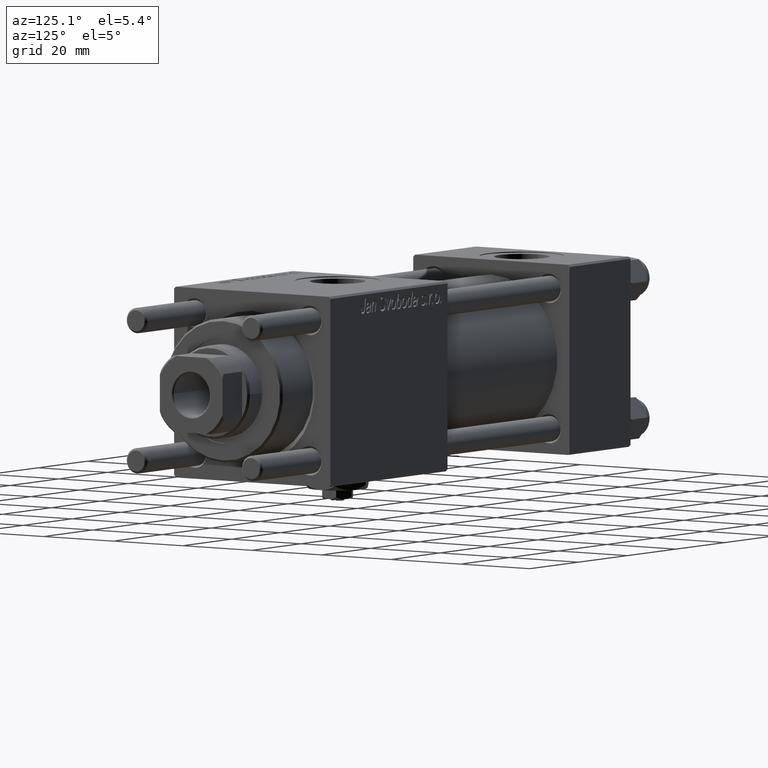
[diagram: clean part render]
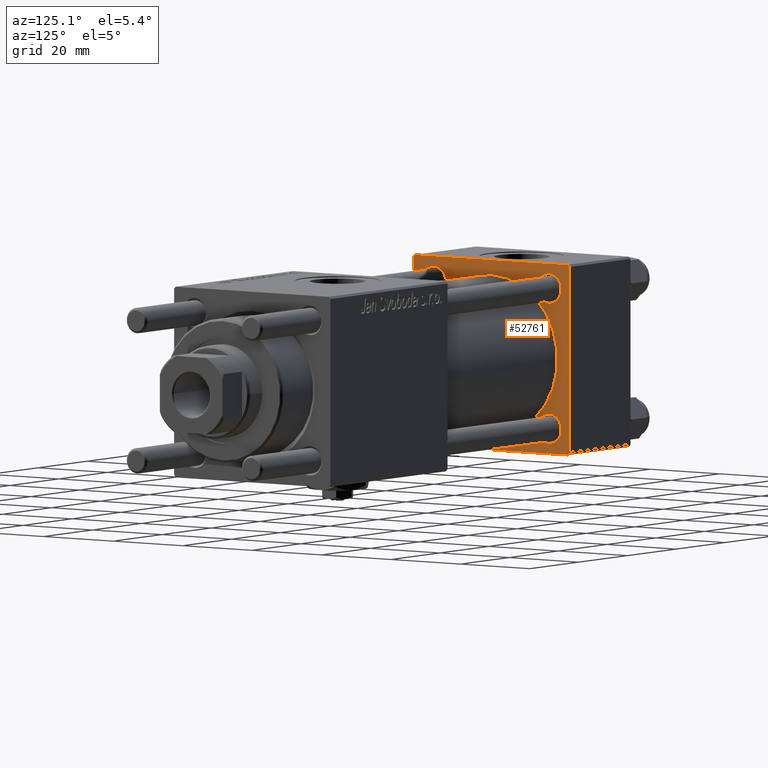
[diagram: same view with one face highlighted and labeled with its STEP entity id]
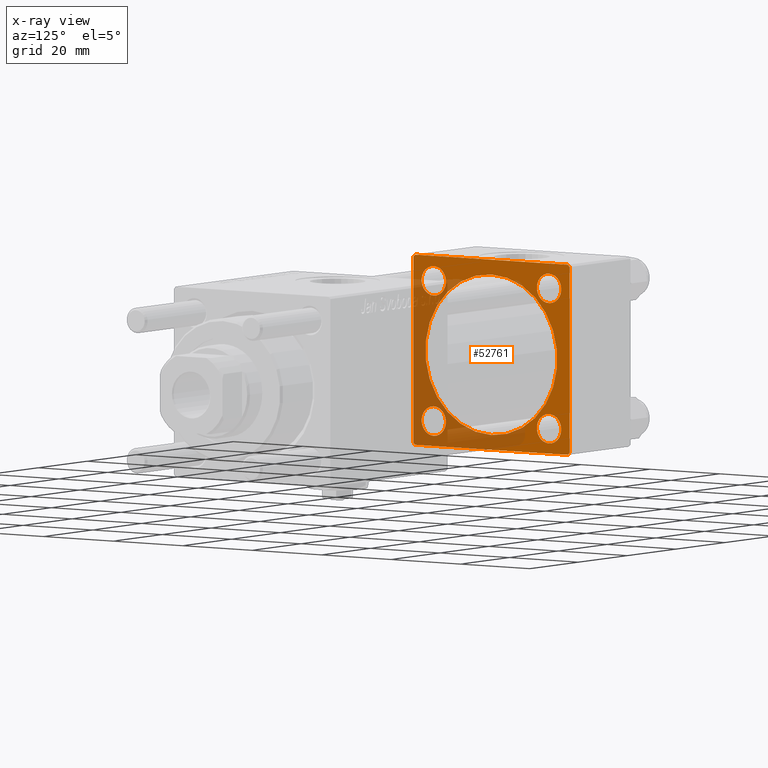
[diagram: x-ray of the same camera — body ghosted, the highlighted face saturated]
A machine part, auxiliary view. The second image highlights one B-rep face of the part: STEP entity #52761.
The next image is the same camera in x-ray: the body ghosted, the highlighted face saturated — about 42% of this face is hidden behind the body in this view.
In plain terms, the highlighted planar face has unit normal (-1, 0, 0).
Its self-contained STEP definition (entity closure, byte-faithful):
#469 = CARTESIAN_POINT ( 'NONE',  ( 25.00000000000000000, 16.59999999999999787, -16.60000000000000497 ) ) ;
#918 = EDGE_CURVE ( 'NONE', #10481, #34786, #30531, .T. ) ;
#1044 = CARTESIAN_POINT ( 'NONE',  ( 25.00000000000000000, -2.602085213965210642E-15, 19.00000000000000000 ) ) ;
#1300 = ORIENTED_EDGE ( 'NONE', *, *, #46770, .T. ) ;
#1978 = ORIENTED_EDGE ( 'NONE', *, *, #33484, .F. ) ;
#1992 = DIRECTION ( 'NONE',  ( 1.000000000000000000, -0.000000000000000000, 0.000000000000000000 ) ) ;
#2874 = EDGE_CURVE ( 'NONE', #12481, #34786, #7894, .T. ) ;
#3317 = CARTESIAN_POINT ( 'NONE',  ( 25.00000000000000000, 0.000000000000000000, 0.000000000000000000 ) ) ;
#3494 = EDGE_CURVE ( 'NONE', #8020, #51766, #27690, .T. ) ;
#3571 = CARTESIAN_POINT ( 'NONE',  ( 25.00000000000000000, 22.50000000000000000, 22.50000000000000355 ) ) ;
#4295 = DIRECTION ( 'NONE',  ( 0.000000000000000000, 0.000000000000000000, 1.000000000000000000 ) ) ;
#4323 = CARTESIAN_POINT ( 'NONE',  ( 25.00000000000000000, 22.50000000000000000, -21.99999999999998224 ) ) ;
#4461 = ORIENTED_EDGE ( 'NONE', *, *, #36915, .F. ) ;
#4468 = DIRECTION ( 'NONE',  ( -1.000000000000000000, 0.000000000000000000, -0.000000000000000000 ) ) ;
#4617 = AXIS2_PLACEMENT_3D ( 'NONE', #469, #5193, #18534 ) ;
#5193 = DIRECTION ( 'NONE',  ( -1.000000000000000000, 0.000000000000000000, -0.000000000000000000 ) ) ;
#5526 = ORIENTED_EDGE ( 'NONE', *, *, #13721, .T. ) ;
#5672 = ORIENTED_EDGE ( 'NONE', *, *, #3494, .T. ) ;
#6130 = AXIS2_PLACEMENT_3D ( 'NONE', #7556, #47831, #21185 ) ;
#6169 = DIRECTION ( 'NONE',  ( 0.000000000000000000, 0.000000000000000000, 1.000000000000000000 ) ) ;
#6306 = VERTEX_POINT ( 'NONE', #7013 ) ;
#6476 = VERTEX_POINT ( 'NONE', #1044 ) ;
#6832 = VERTEX_POINT ( 'NONE', #9544 ) ;
#7011 = DIRECTION ( 'NONE',  ( 0.000000000000000000, 0.000000000000000000, 1.000000000000000000 ) ) ;
#7013 = CARTESIAN_POINT ( 'NONE',  ( 25.00000000000000000, -2.752562955852396712E-16, -19.00000000000000000 ) ) ;
#7549 = DIRECTION ( 'NONE',  ( 0.000000000000000000, 0.000000000000000000, 1.000000000000000000 ) ) ;
#7556 = CARTESIAN_POINT ( 'NONE',  ( 25.00000000000000000, 16.59999999999999787, 16.60000000000000497 ) ) ;
#7676 = EDGE_CURVE ( 'NONE', #52121, #18859, #7812, .T. ) ;
#7812 = CIRCLE ( 'NONE', #57926, 3.499999999999989342 ) ;
#7894 = LINE ( 'NONE', #4323, #50327 ) ;
#8020 = VERTEX_POINT ( 'NONE', #27577 ) ;
#8079 = ORIENTED_EDGE ( 'NONE', *, *, #31995, .T. ) ;
#8183 = CARTESIAN_POINT ( 'NONE',  ( 25.00000000000000000, 22.50000000000000000, 22.50000000000000355 ) ) ;
#8188 = CIRCLE ( 'NONE', #13832, 19.00000000000000000 ) ;
#8337 = AXIS2_PLACEMENT_3D ( 'NONE', #12889, #30973, #4295 ) ;
#8926 = VERTEX_POINT ( 'NONE', #22769 ) ;
#9544 = CARTESIAN_POINT ( 'NONE',  ( 25.00000000000000000, 16.59999999999999787, -13.10000000000000142 ) ) ;
#10481 = VERTEX_POINT ( 'NONE', #34252 ) ;
#10488 = DIRECTION ( 'NONE',  ( 1.000000000000000000, -0.000000000000000000, 0.000000000000000000 ) ) ;
#10702 = ORIENTED_EDGE ( 'NONE', *, *, #918, .F. ) ;
#10995 = DIRECTION ( 'NONE',  ( 0.000000000000000000, 0.7071067811865426878, -0.7071067811865524577 ) ) ;
#11981 = CARTESIAN_POINT ( 'NONE',  ( 25.00000000000000000, 16.59999999999999787, 16.60000000000000497 ) ) ;
#12481 = VERTEX_POINT ( 'NONE', #36289 ) ;
#12552 = LINE ( 'NONE', #21448, #33091 ) ;
#12889 = CARTESIAN_POINT ( 'NONE',  ( 25.00000000000000000, -16.59999999999999076, 16.60000000000000853 ) ) ;
#13408 = CARTESIAN_POINT ( 'NONE',  ( 25.00000000000000000, -16.59999999999999076, -16.60000000000000853 ) ) ;
#13721 = EDGE_CURVE ( 'NONE', #18859, #52121, #44825, .T. ) ;
#13832 = AXIS2_PLACEMENT_3D ( 'NONE', #14931, #10488, #28565 ) ;
#13959 = EDGE_LOOP ( 'NONE', ( #50809, #41558, #10702, #42950, #30677, #23197, #24981, #24194 ) ) ;
#14346 = EDGE_CURVE ( 'NONE', #12481, #50145, #19778, .T. ) ;
#14754 = VERTEX_POINT ( 'NONE', #53906 ) ;
#14931 = CARTESIAN_POINT ( 'NONE',  ( 25.00000000000000000, -2.602085213965210642E-15, 0.000000000000000000 ) ) ;
#15060 = EDGE_CURVE ( 'NONE', #14754, #15718, #28828, .T. ) ;
#15086 = ORIENTED_EDGE ( 'NONE', *, *, #15060, .T. ) ;
#15112 = CARTESIAN_POINT ( 'NONE',  ( 25.00000000000000000, -22.50000000000000000, 22.00000000000000000 ) ) ;
#15718 = VERTEX_POINT ( 'NONE', #50536 ) ;
#16350 = FACE_BOUND ( 'NONE', #25541, .T. ) ;
#16366 = CARTESIAN_POINT ( 'NONE',  ( 25.00000000000000000, -22.50000000000000000, -21.99999999999997158 ) ) ;
#17494 = CARTESIAN_POINT ( 'NONE',  ( 25.00000000000000000, -16.59999999999999076, -20.09999999999999787 ) ) ;
#17738 = VERTEX_POINT ( 'NONE', #16366 ) ;
#18486 = CIRCLE ( 'NONE', #19478, 3.500000000000003109 ) ;
#18534 = DIRECTION ( 'NONE',  ( 0.000000000000000000, 0.000000000000000000, 1.000000000000000000 ) ) ;
#18577 = CARTESIAN_POINT ( 'NONE',  ( 25.00000000000000000, -21.99999999999997158, -22.50000000000000711 ) ) ;
#18859 = VERTEX_POINT ( 'NONE', #29931 ) ;
#19121 = VECTOR ( 'NONE', #57737, 1000.000000000000000 ) ;
#19478 = AXIS2_PLACEMENT_3D ( 'NONE', #11981, #38955, #7549 ) ;
#19778 = LINE ( 'NONE', #37863, #26909 ) ;
#20254 = VERTEX_POINT ( 'NONE', #15112 ) ;
#21185 = DIRECTION ( 'NONE',  ( 0.000000000000000000, 0.000000000000000000, 1.000000000000000000 ) ) ;
#21448 = CARTESIAN_POINT ( 'NONE',  ( 25.00000000000000000, -22.50000000000000000, 22.00000000000000000 ) ) ;
#21693 = EDGE_CURVE ( 'NONE', #6832, #8926, #24929, .T. ) ;
#21871 = CARTESIAN_POINT ( 'NONE',  ( 25.00000000000000000, -21.99999999999997868, 22.50000000000000000 ) ) ;
#22181 = CARTESIAN_POINT ( 'NONE',  ( 25.00000000000000000, 21.99999999999999289, 22.50000000000000355 ) ) ;
#22410 = AXIS2_PLACEMENT_3D ( 'NONE', #30105, #1992, #7011 ) ;
#22769 = CARTESIAN_POINT ( 'NONE',  ( 25.00000000000000000, 16.59999999999999787, -20.10000000000000853 ) ) ;
#23197 = ORIENTED_EDGE ( 'NONE', *, *, #48827, .T. ) ;
#23391 = CIRCLE ( 'NONE', #22410, 19.00000000000000000 ) ;
#23476 = DIRECTION ( 'NONE',  ( -1.000000000000000000, 0.000000000000000000, -0.000000000000000000 ) ) ;
#23602 = EDGE_LOOP ( 'NONE', ( #1300, #48048 ) ) ;
#23942 = CARTESIAN_POINT ( 'NONE',  ( 25.00000000000000000, -16.59999999999999076, -16.60000000000000853 ) ) ;
#24095 = ORIENTED_EDGE ( 'NONE', *, *, #7676, .T. ) ;
#24194 = ORIENTED_EDGE ( 'NONE', *, *, #33814, .T. ) ;
#24929 = CIRCLE ( 'NONE', #48592, 3.500000000000003109 ) ;
#24981 = ORIENTED_EDGE ( 'NONE', *, *, #27775, .T. ) ;
#25018 = DIRECTION ( 'NONE',  ( -0.000000000000000000, -0.7071067811865525687, -0.7071067811865425767 ) ) ;
#25316 = DIRECTION ( 'NONE',  ( 0.000000000000000000, 0.000000000000000000, -1.000000000000000000 ) ) ;
#25541 = EDGE_LOOP ( 'NONE', ( #24095, #5526 ) ) ;
#25972 = DIRECTION ( 'NONE',  ( 0.000000000000000000, 0.000000000000000000, 1.000000000000000000 ) ) ;
#26533 = CARTESIAN_POINT ( 'NONE',  ( 25.00000000000000000, 22.50000000000000000, -21.99999999999996803 ) ) ;
#26909 = VECTOR ( 'NONE', #55885, 1000.000000000000000 ) ;
#27577 = CARTESIAN_POINT ( 'NONE',  ( 25.00000000000000000, -16.59999999999999076, 13.10000000000001386 ) ) ;
#27690 = CIRCLE ( 'NONE', #51301, 3.499999999999992895 ) ;
#27775 = EDGE_CURVE ( 'NONE', #20254, #17738, #43942, .T. ) ;
#28056 = VECTOR ( 'NONE', #35714, 1000.000000000000000 ) ;
#28465 = EDGE_LOOP ( 'NONE', ( #5672, #53650 ) ) ;
#28565 = DIRECTION ( 'NONE',  ( 0.000000000000000000, 0.000000000000000000, 1.000000000000000000 ) ) ;
#28828 = CIRCLE ( 'NONE', #6130, 3.500000000000003109 ) ;
#28911 = VECTOR ( 'NONE', #25316, 1000.000000000000000 ) ;
#29931 = CARTESIAN_POINT ( 'NONE',  ( 25.00000000000000000, -16.59999999999999076, -13.10000000000001741 ) ) ;
#30105 = CARTESIAN_POINT ( 'NONE',  ( 25.00000000000000000, -2.602085213965210642E-15, 0.000000000000000000 ) ) ;
#30163 = CIRCLE ( 'NONE', #4617, 3.500000000000003109 ) ;
#30531 = LINE ( 'NONE', #3571, #19121 ) ;
#30677 = ORIENTED_EDGE ( 'NONE', *, *, #34694, .T. ) ;
#30859 = DIRECTION ( 'NONE',  ( -1.000000000000000000, 0.000000000000000000, -0.000000000000000000 ) ) ;
#30973 = DIRECTION ( 'NONE',  ( -1.000000000000000000, 0.000000000000000000, -0.000000000000000000 ) ) ;
#31494 = DIRECTION ( 'NONE',  ( 0.000000000000000000, 0.000000000000000000, 1.000000000000000000 ) ) ;
#31995 = EDGE_CURVE ( 'NONE', #15718, #14754, #18486, .T. ) ;
#32554 = EDGE_CURVE ( 'NONE', #10481, #36132, #44400, .T. ) ;
#32939 = CARTESIAN_POINT ( 'NONE',  ( 25.00000000000000000, -21.99999999999998579, -22.50000000000000711 ) ) ;
#33091 = VECTOR ( 'NONE', #25018, 999.9999999999998863 ) ;
#33484 = EDGE_CURVE ( 'NONE', #6306, #6476, #8188, .T. ) ;
#33520 = LINE ( 'NONE', #32939, #49761 ) ;
#33814 = EDGE_CURVE ( 'NONE', #17738, #50145, #33520, .T. ) ;
#34177 = AXIS2_PLACEMENT_3D ( 'NONE', #3317, #30859, #49198 ) ;
#34252 = CARTESIAN_POINT ( 'NONE',  ( 25.00000000000000000, 22.50000000000000000, 21.99999999999999645 ) ) ;
#34399 = VERTEX_POINT ( 'NONE', #21871 ) ;
#34694 = EDGE_CURVE ( 'NONE', #36132, #34399, #35143, .T. ) ;
#34786 = VERTEX_POINT ( 'NONE', #26533 ) ;
#35012 = PLANE ( 'NONE',  #34177 ) ;
#35143 = LINE ( 'NONE', #8183, #28056 ) ;
#35351 = CARTESIAN_POINT ( 'NONE',  ( 25.00000000000000000, -16.59999999999999076, 20.10000000000000142 ) ) ;
#35450 = DIRECTION ( 'NONE',  ( -1.000000000000000000, 0.000000000000000000, -0.000000000000000000 ) ) ;
#35714 = DIRECTION ( 'NONE',  ( 0.000000000000000000, -1.000000000000000000, -7.709882115452476934E-17 ) ) ;
#36132 = VERTEX_POINT ( 'NONE', #40801 ) ;
#36289 = CARTESIAN_POINT ( 'NONE',  ( 25.00000000000000000, 21.99999999999999289, -22.49999999999999645 ) ) ;
#36458 = CARTESIAN_POINT ( 'NONE',  ( 25.00000000000000000, -16.59999999999999076, 16.60000000000000853 ) ) ;
#36915 = EDGE_CURVE ( 'NONE', #6476, #6306, #23391, .T. ) ;
#37863 = CARTESIAN_POINT ( 'NONE',  ( 25.00000000000000000, 22.50000000000000000, -22.49999999999999645 ) ) ;
#38823 = EDGE_CURVE ( 'NONE', #51766, #8020, #58357, .T. ) ;
#38867 = FACE_BOUND ( 'NONE', #56343, .T. ) ;
#38955 = DIRECTION ( 'NONE',  ( -1.000000000000000000, 0.000000000000000000, -0.000000000000000000 ) ) ;
#39896 = CARTESIAN_POINT ( 'NONE',  ( 25.00000000000000000, 16.59999999999999787, -16.60000000000000497 ) ) ;
#40028 = FACE_BOUND ( 'NONE', #23602, .T. ) ;
#40253 = DIRECTION ( 'NONE',  ( 0.000000000000000000, -0.7071067811865474617, 0.7071067811865474617 ) ) ;
#40801 = CARTESIAN_POINT ( 'NONE',  ( 25.00000000000000000, 21.99999999999999289, 22.50000000000000355 ) ) ;
#41558 = ORIENTED_EDGE ( 'NONE', *, *, #2874, .T. ) ;
#42425 = EDGE_LOOP ( 'NONE', ( #4461, #1978 ) ) ;
#42950 = ORIENTED_EDGE ( 'NONE', *, *, #32554, .T. ) ;
#43942 = LINE ( 'NONE', #47809, #28911 ) ;
#44059 = VECTOR ( 'NONE', #40253, 1000.000000000000114 ) ;
#44400 = LINE ( 'NONE', #22181, #44059 ) ;
#44825 = CIRCLE ( 'NONE', #46735, 3.499999999999989342 ) ;
#46439 = DIRECTION ( 'NONE',  ( -1.000000000000000000, 0.000000000000000000, -0.000000000000000000 ) ) ;
#46735 = AXIS2_PLACEMENT_3D ( 'NONE', #13408, #23476, #31494 ) ;
#46770 = EDGE_CURVE ( 'NONE', #8926, #6832, #30163, .T. ) ;
#47809 = CARTESIAN_POINT ( 'NONE',  ( 25.00000000000000000, -22.50000000000000000, 22.50000000000000000 ) ) ;
#47831 = DIRECTION ( 'NONE',  ( -1.000000000000000000, 0.000000000000000000, -0.000000000000000000 ) ) ;
#48048 = ORIENTED_EDGE ( 'NONE', *, *, #21693, .T. ) ;
#48592 = AXIS2_PLACEMENT_3D ( 'NONE', #39896, #35450, #25972 ) ;
#48827 = EDGE_CURVE ( 'NONE', #34399, #20254, #12552, .T. ) ;
#49198 = DIRECTION ( 'NONE',  ( -0.000000000000000000, 0.000000000000000000, 1.000000000000000000 ) ) ;
#49761 = VECTOR ( 'NONE', #10995, 1000.000000000000000 ) ;
#50145 = VERTEX_POINT ( 'NONE', #18577 ) ;
#50327 = VECTOR ( 'NONE', #57912, 1000.000000000000000 ) ;
#50536 = CARTESIAN_POINT ( 'NONE',  ( 25.00000000000000000, 16.59999999999999787, 20.10000000000000853 ) ) ;
#50809 = ORIENTED_EDGE ( 'NONE', *, *, #14346, .F. ) ;
#51301 = AXIS2_PLACEMENT_3D ( 'NONE', #36458, #4468, #54491 ) ;
#51766 = VERTEX_POINT ( 'NONE', #35351 ) ;
#52121 = VERTEX_POINT ( 'NONE', #17494 ) ;
#52761 = ADVANCED_FACE ( 'NONE', ( #16350, #40028, #58061, #38867, #57773, #53338 ), #35012, .F. ) ;
#53338 = FACE_OUTER_BOUND ( 'NONE', #13959, .T. ) ;
#53650 = ORIENTED_EDGE ( 'NONE', *, *, #38823, .T. ) ;
#53906 = CARTESIAN_POINT ( 'NONE',  ( 25.00000000000000000, 16.59999999999999787, 13.10000000000000142 ) ) ;
#54491 = DIRECTION ( 'NONE',  ( 0.000000000000000000, 0.000000000000000000, 1.000000000000000000 ) ) ;
#55885 = DIRECTION ( 'NONE',  ( 0.000000000000000000, -1.000000000000000000, -2.312964634635742957E-16 ) ) ;
#56343 = EDGE_LOOP ( 'NONE', ( #15086, #8079 ) ) ;
#57737 = DIRECTION ( 'NONE',  ( 0.000000000000000000, 0.000000000000000000, -1.000000000000000000 ) ) ;
#57773 = FACE_BOUND ( 'NONE', #42425, .T. ) ;
#57912 = DIRECTION ( 'NONE',  ( -0.000000000000000000, 0.7071067811865426878, 0.7071067811865524577 ) ) ;
#57926 = AXIS2_PLACEMENT_3D ( 'NONE', #23942, #46439, #6169 ) ;
#58061 = FACE_BOUND ( 'NONE', #28465, .T. ) ;
#58357 = CIRCLE ( 'NONE', #8337, 3.499999999999992895 ) ;